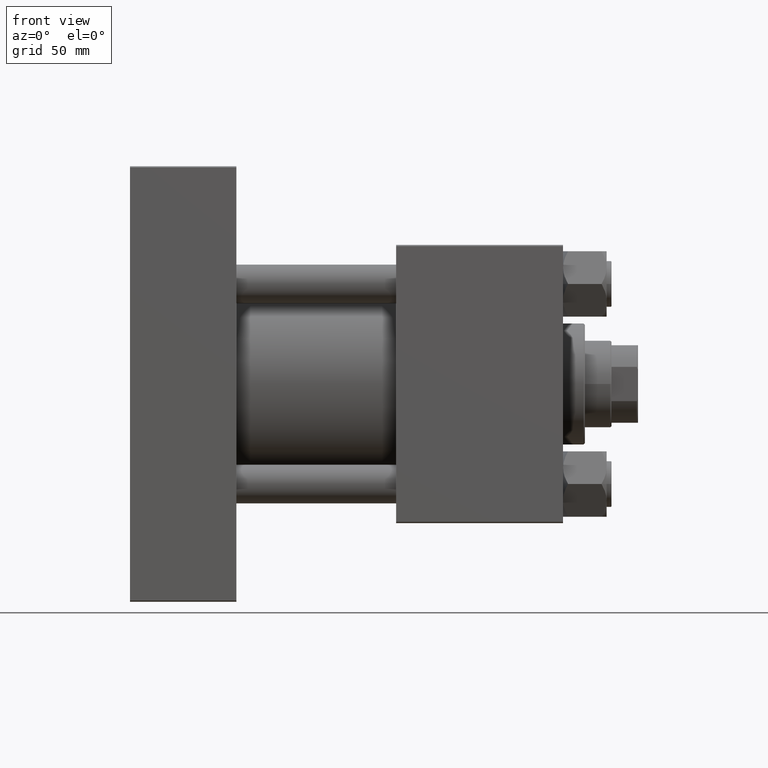
[diagram: clean part render]
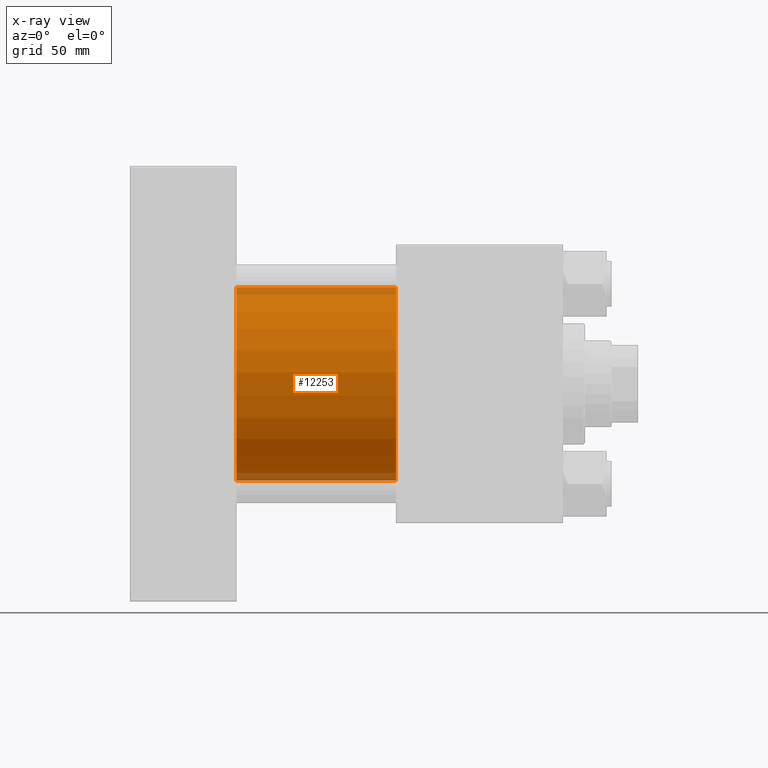
[diagram: x-ray — body ghosted, one internal face saturated and labeled with its STEP entity id]
A machine part, front view, then the same camera in x-ray: the body is ghosted and one INTERNAL B-rep face — a face not visible from any outside direction — is saturated and labeled: STEP entity #12253.
In plain terms, the highlighted cylindrical surface (partial cylindrical patch) has radius 40 mm, axis along (-1, -0, -0).
Its self-contained STEP definition (entity closure, byte-faithful):
#5829 = VECTOR ( 'NONE', #29711, 1000.000000000000000 ) ;
#6661 = DIRECTION ( 'NONE',  ( -1.000000000000000000, -0.000000000000000000, -0.000000000000000000 ) ) ;
#9227 = CIRCLE ( 'NONE', #38948, 40.00000000000000000 ) ;
#11411 = EDGE_CURVE ( 'NONE', #23808, #12598, #23657, .T. ) ;
#11541 = EDGE_CURVE ( 'NONE', #12598, #46278, #41136, .T. ) ;
#12253 = ADVANCED_FACE ( 'NONE', ( #27104 ), #27371, .F. ) ;
#12598 = VERTEX_POINT ( 'NONE', #14825 ) ;
#13928 = DIRECTION ( 'NONE',  ( 0.000000000000000000, 0.000000000000000000, -1.000000000000000000 ) ) ;
#14825 = CARTESIAN_POINT ( 'NONE',  ( 110.0000000000000000, 2.296501982624201990E-15, -40.00000000000000000 ) ) ;
#15630 = EDGE_LOOP ( 'NONE', ( #21991, #19373, #35904, #44159 ) ) ;
#19344 = VERTEX_POINT ( 'NONE', #27930 ) ;
#19373 = ORIENTED_EDGE ( 'NONE', *, *, #11541, .T. ) ;
#21991 = ORIENTED_EDGE ( 'NONE', *, *, #11411, .T. ) ;
#23657 = CIRCLE ( 'NONE', #32996, 40.00000000000000000 ) ;
#23808 = VERTEX_POINT ( 'NONE', #38155 ) ;
#25458 = CARTESIAN_POINT ( 'NONE',  ( 110.0000000000000000, 2.296501982624201990E-15, -40.00000000000000000 ) ) ;
#27104 = FACE_OUTER_BOUND ( 'NONE', #15630, .T. ) ;
#27371 = CYLINDRICAL_SURFACE ( 'NONE', #47439, 40.00000000000000000 ) ;
#27930 = CARTESIAN_POINT ( 'NONE',  ( 44.00000000000000000, -2.602085213965210642E-15, 40.00000000000000000 ) ) ;
#29711 = DIRECTION ( 'NONE',  ( -1.000000000000000000, -0.000000000000000000, -0.000000000000000000 ) ) ;
#32136 = CARTESIAN_POINT ( 'NONE',  ( 110.0000000000000000, -2.602085213965210642E-15, 0.000000000000000000 ) ) ;
#32996 = AXIS2_PLACEMENT_3D ( 'NONE', #32136, #35853, #48837 ) ;
#34672 = VECTOR ( 'NONE', #6661, 1000.000000000000000 ) ;
#34838 = LINE ( 'NONE', #51279, #34672 ) ;
#35853 = DIRECTION ( 'NONE',  ( 1.000000000000000000, 0.000000000000000000, 0.000000000000000000 ) ) ;
#35904 = ORIENTED_EDGE ( 'NONE', *, *, #46853, .F. ) ;
#38155 = CARTESIAN_POINT ( 'NONE',  ( 110.0000000000000000, -2.602085213965210642E-15, 40.00000000000000000 ) ) ;
#38553 = DIRECTION ( 'NONE',  ( -1.000000000000000000, -0.000000000000000000, -0.000000000000000000 ) ) ;
#38948 = AXIS2_PLACEMENT_3D ( 'NONE', #50042, #50310, #13928 ) ;
#41136 = LINE ( 'NONE', #25458, #5829 ) ;
#41997 = CARTESIAN_POINT ( 'NONE',  ( 44.00000000000000000, 2.296501982624201990E-15, -40.00000000000000000 ) ) ;
#44159 = ORIENTED_EDGE ( 'NONE', *, *, #46364, .F. ) ;
#46278 = VERTEX_POINT ( 'NONE', #41997 ) ;
#46364 = EDGE_CURVE ( 'NONE', #23808, #19344, #34838, .T. ) ;
#46853 = EDGE_CURVE ( 'NONE', #19344, #46278, #9227, .T. ) ;
#47023 = CARTESIAN_POINT ( 'NONE',  ( 110.0000000000000000, -2.602085213965210642E-15, 0.000000000000000000 ) ) ;
#47439 = AXIS2_PLACEMENT_3D ( 'NONE', #47023, #38553, #51525 ) ;
#48837 = DIRECTION ( 'NONE',  ( 0.000000000000000000, 0.000000000000000000, -1.000000000000000000 ) ) ;
#50042 = CARTESIAN_POINT ( 'NONE',  ( 44.00000000000000000, -2.602085213965210642E-15, 0.000000000000000000 ) ) ;
#50310 = DIRECTION ( 'NONE',  ( 1.000000000000000000, 0.000000000000000000, 0.000000000000000000 ) ) ;
#51279 = CARTESIAN_POINT ( 'NONE',  ( 110.0000000000000000, -2.602085213965210642E-15, 40.00000000000000000 ) ) ;
#51525 = DIRECTION ( 'NONE',  ( 0.000000000000000000, 0.000000000000000000, 1.000000000000000000 ) ) ;